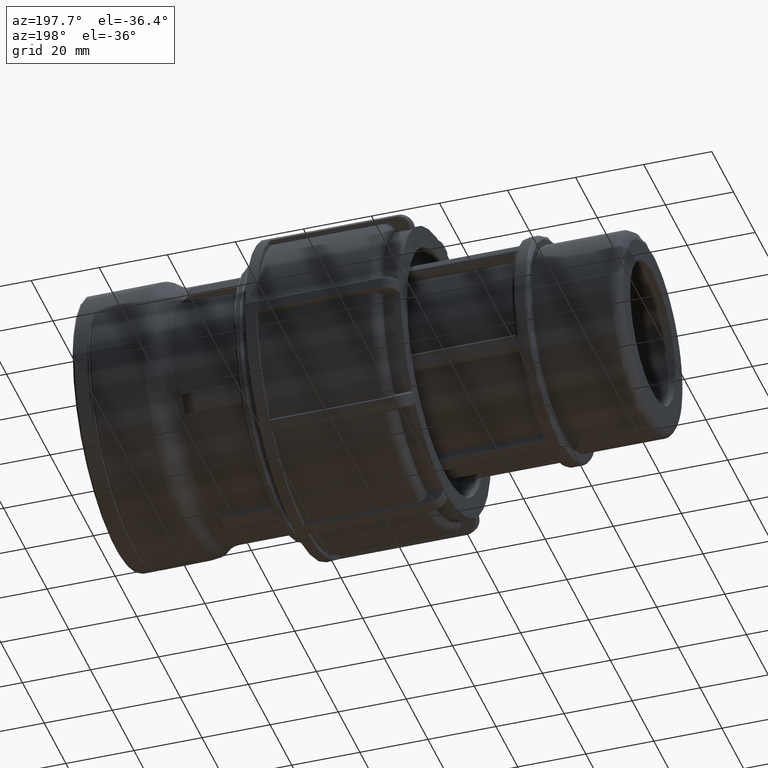
[diagram: clean part render]
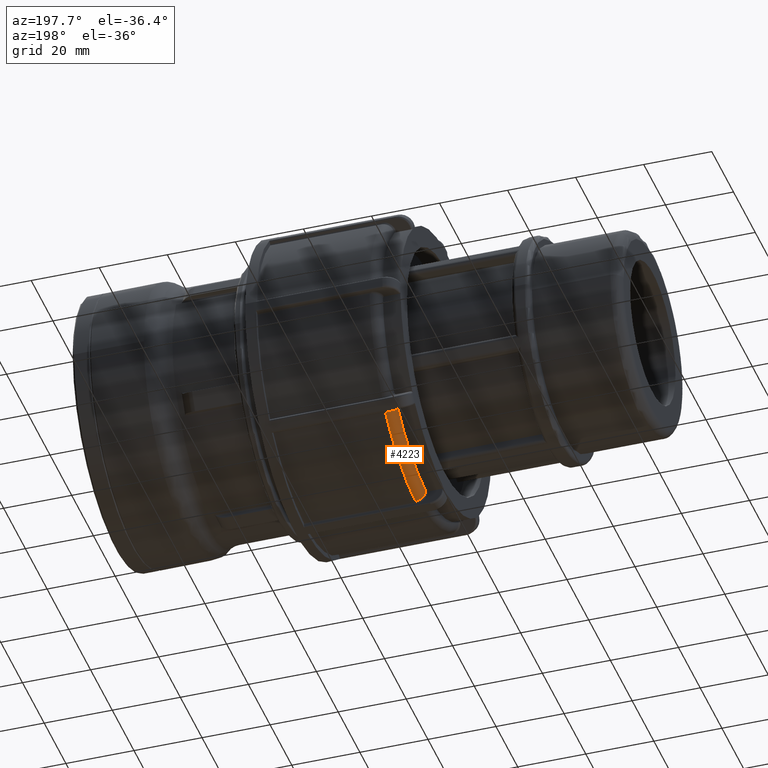
[diagram: same view with one face highlighted and labeled with its STEP entity id]
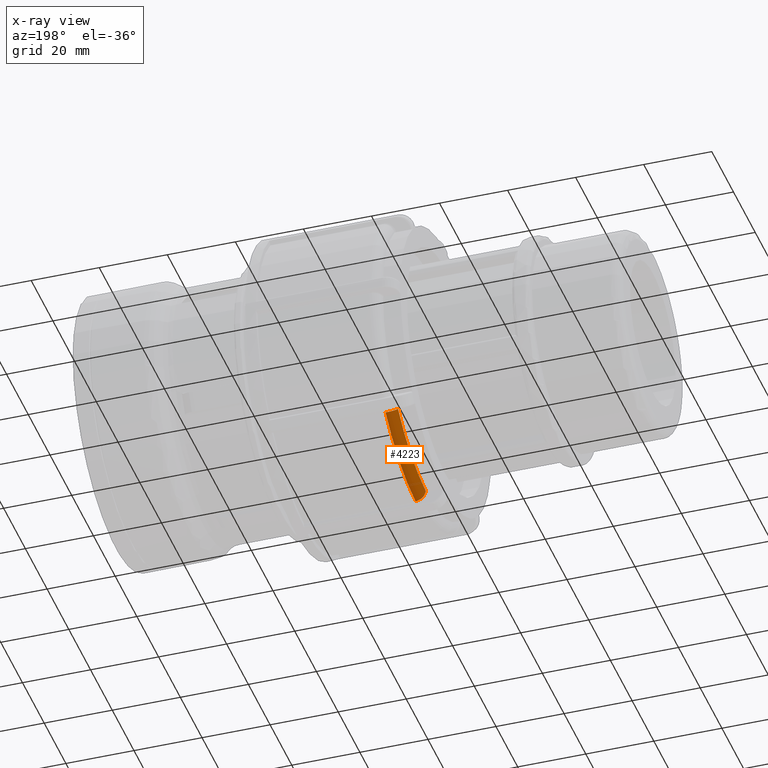
[diagram: x-ray of the same camera — body ghosted, the highlighted face saturated]
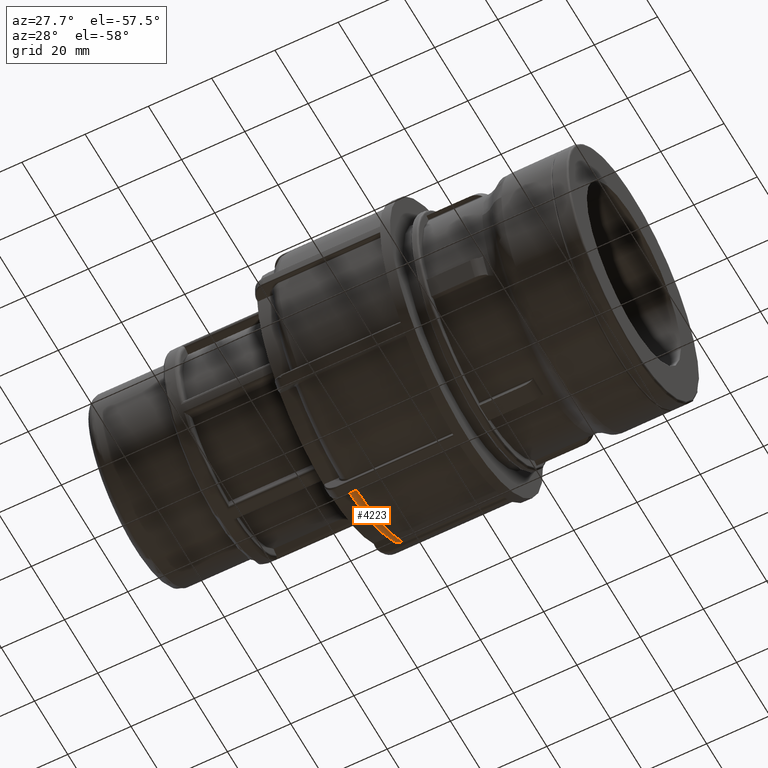
[diagram: same view with one face highlighted and labeled with its STEP entity id]
A machine part, auxiliary view. The second image highlights one B-rep face of the part: STEP entity #4223.
The next image is the same camera in x-ray: the body ghosted, the highlighted face saturated — about 0% of this face is hidden behind the body in this view.
A second angle (auxiliary view) of the same face is appended — the face is thin or edge-on in the first view.
In plain terms, the highlighted toroidal blend (fillet) surface has major radius 41.6878 mm and minor (blend) radius 2.9807 mm.
Its self-contained STEP definition (entity closure, byte-faithful):
#980=FACE_OUTER_BOUND('',#1242,.T.);
#1242=EDGE_LOOP('',(#3923,#3924,#3925,#3926));
#1332=B_SPLINE_CURVE_WITH_KNOTS('',3,(#7035,#7036,#7037,#7038,#7039),
 .UNSPECIFIED.,.F.,.F.,(4,1,4),(-0.536046685375972,-0.229734293732559,6.73539014680741E-16),
 .UNSPECIFIED.);
#1347=B_SPLINE_CURVE_WITH_KNOTS('',3,(#7370,#7371,#7372,#7373,#7374),
 .UNSPECIFIED.,.F.,.F.,(4,1,4),(-0.536046685376012,-0.306312391643435,0.),
 .UNSPECIFIED.);
#1558=CIRCLE('',#4481,41.7298);
#1643=CIRCLE('',#4654,44.6685);
#1904=VERTEX_POINT('',#7010);
#1906=VERTEX_POINT('',#7033);
#1938=VERTEX_POINT('',#7325);
#1939=VERTEX_POINT('',#7353);
#2395=EDGE_CURVE('',#1906,#1904,#1332,.T.);
#2452=EDGE_CURVE('',#1939,#1938,#1347,.T.);
#2453=EDGE_CURVE('',#1939,#1904,#1558,.T.);
#2693=EDGE_CURVE('',#1906,#1938,#1643,.T.);
#3923=ORIENTED_EDGE('',*,*,#2395,.F.);
#3924=ORIENTED_EDGE('',*,*,#2693,.T.);
#3925=ORIENTED_EDGE('',*,*,#2452,.F.);
#3926=ORIENTED_EDGE('',*,*,#2453,.T.);
#3992=TOROIDAL_SURFACE('',#4661,41.6878,2.9807);
#4223=ADVANCED_FACE('',(#980),#3992,.T.);
#4481=AXIS2_PLACEMENT_3D('',#7376,#5330,#5331);
#4654=AXIS2_PLACEMENT_3D('',#8904,#5760,#5761);
#4661=AXIS2_PLACEMENT_3D('',#8911,#5774,#5775);
#5330=DIRECTION('center_axis',(1.,0.,0.));
#5331=DIRECTION('ref_axis',(0.,0.,-1.));
#5760=DIRECTION('center_axis',(-1.,0.,0.));
#5761=DIRECTION('ref_axis',(0.,1.,-1.83720076010973E-16));
#5774=DIRECTION('center_axis',(1.,0.,0.));
#5775=DIRECTION('ref_axis',(0.,1.,-1.83720076010973E-16));
#7010=CARTESIAN_POINT('',(-91.97,27.8346273503509,-31.090347831877));
#7033=CARTESIAN_POINT('',(-88.9895959183359,29.9327628126583,-33.1557627366819));
#7035=CARTESIAN_POINT('Ctrl Pts',(-88.9895959183359,29.9327628126583,-33.1557627366819));
#7036=CARTESIAN_POINT('Ctrl Pts',(-89.8740018869627,29.9327628126583,-33.1557627366819));
#7037=CARTESIAN_POINT('Ctrl Pts',(-91.4046718718131,29.4076338343959,-32.6380353819633));
#7038=CARTESIAN_POINT('Ctrl Pts',(-91.960667839714,28.3078147212477,-31.5555623201182));
#7039=CARTESIAN_POINT('Ctrl Pts',(-91.97,27.8346273503509,-31.090347831877));
#7325=CARTESIAN_POINT('',(-88.9895959183359,2.27900510204079,-44.6103242309992));
#7353=CARTESIAN_POINT('',(-91.97,2.30214203013499,-41.6662495326023));
#7370=CARTESIAN_POINT('Ctrl Pts',(-91.97,2.30214203013499,-41.6662495326023));
#7371=CARTESIAN_POINT('Ctrl Pts',(-91.9606678397141,2.29650435074357,-42.329799850677));
#7372=CARTESIAN_POINT('Ctrl Pts',(-91.4046625592662,2.28423891149624,-43.8729057167907));
#7373=CARTESIAN_POINT('Ctrl Pts',(-89.8740018869628,2.27900510204078,-44.6103242309992));
#7374=CARTESIAN_POINT('Ctrl Pts',(-88.9895959183359,2.27900510204078,-44.6103242309992));
#7376=CARTESIAN_POINT('Origin',(-91.97,0.,0.));
#8904=CARTESIAN_POINT('Origin',(-88.9895959183359,0.,0.));
#8911=CARTESIAN_POINT('Origin',(-88.9895959183359,0.,0.));